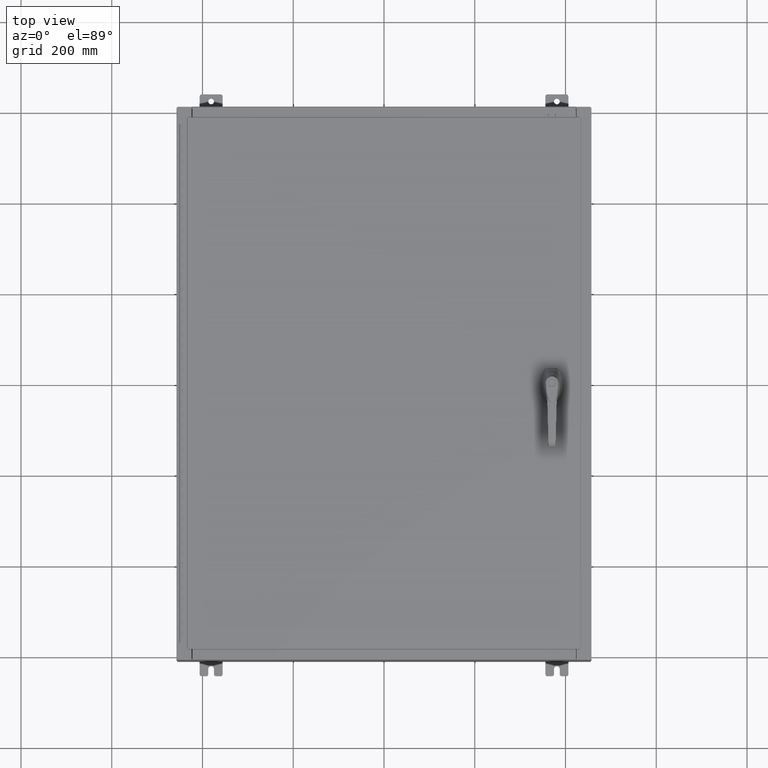
[diagram: clean part render]
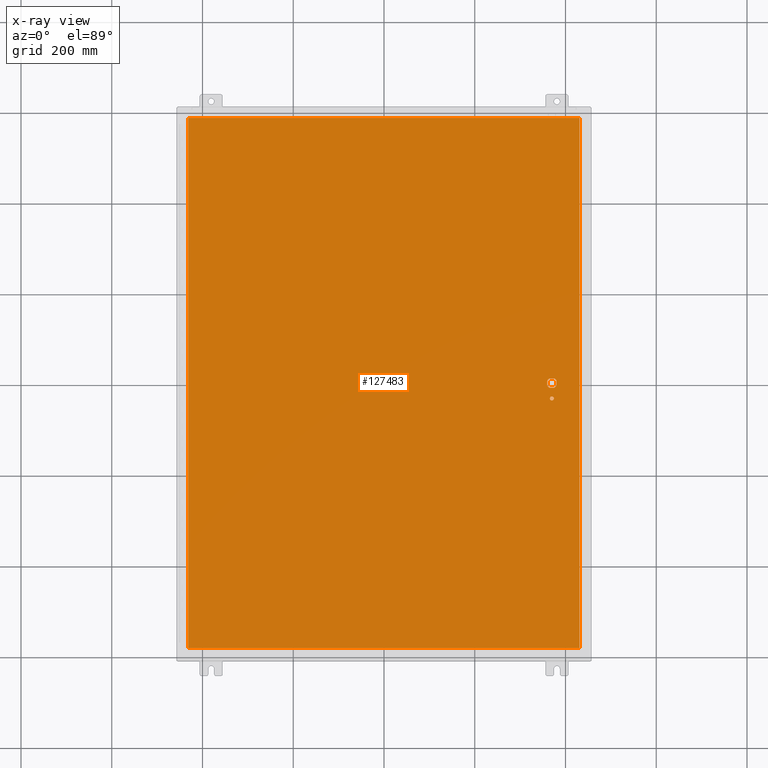
[diagram: x-ray — body ghosted, one internal face saturated and labeled with its STEP entity id]
A machine part, top view, then the same camera in x-ray: the body is ghosted and one INTERNAL B-rep face — a face not visible from any outside direction — is saturated and labeled: STEP entity #127483.
In plain terms, the highlighted planar face has unit normal (0, 0, -1).
Its self-contained STEP definition (entity closure, byte-faithful):
#337 = AXIS2_PLACEMENT_3D ( 'NONE', #79572, #17434, #89967 ) ;
#2579 = ORIENTED_EDGE ( 'NONE', *, *, #22970, .F. ) ;
#2669 = VERTEX_POINT ( 'NONE', #17419 ) ;
#2894 = CARTESIAN_POINT ( 'NONE',  ( 14.17500000000007400, 0.0000000000000000000, -0.07470000000000003000 ) ) ;
#4186 = CARTESIAN_POINT ( 'NONE',  ( 14.37777262924369000, -0.4029999999999250300, -0.07470000000000003000 ) ) ;
#7045 = VERTEX_POINT ( 'NONE', #4186 ) ;
#7061 = EDGE_CURVE ( 'NONE', #101844, #7045, #110203, .T. ) ;
#7495 = DIRECTION ( 'NONE',  ( -1.000000000000000000, 0.0000000000000000000, 0.0000000000000000000 ) ) ;
#7677 = CARTESIAN_POINT ( 'NONE',  ( 16.99029999999999800, -23.00630000000000000, -0.07470000000000000300 ) ) ;
#8233 = LINE ( 'NONE', #52496, #115249 ) ;
#8576 = LINE ( 'NONE', #123179, #63725 ) ;
#13127 = EDGE_CURVE ( 'NONE', #131182, #61639, #72195, .T. ) ;
#13226 = AXIS2_PLACEMENT_3D ( 'NONE', #27553, #100099, #37963 ) ;
#17125 = CARTESIAN_POINT ( 'NONE',  ( 14.40649999999999800, -1.338000000000000100, -0.07470000000000003000 ) ) ;
#17177 = PLANE ( 'NONE',  #13226 ) ;
#17419 = CARTESIAN_POINT ( 'NONE',  ( -16.99029999999999800, -23.00630000000000000, -0.07470000000000000300 ) ) ;
#17423 = ORIENTED_EDGE ( 'NONE', *, *, #13127, .T. ) ;
#17434 = DIRECTION ( 'NONE',  ( -0.0000000000000000000, -0.0000000000000000000, 1.000000000000000000 ) ) ;
#19519 = VECTOR ( 'NONE', #94565, 39.37007874015748100 ) ;
#20341 = CARTESIAN_POINT ( 'NONE',  ( 14.98099999999992700, -0.2002273707563067300, -0.07470000000000003000 ) ) ;
#20376 = ORIENTED_EDGE ( 'NONE', *, *, #127525, .T. ) ;
#22228 = VERTEX_POINT ( 'NONE', #17125 ) ;
#22824 = EDGE_LOOP ( 'NONE', ( #81916, #116933, #17423, #25218, #20376, #105251, #30755, #69776 ) ) ;
#22970 = EDGE_CURVE ( 'NONE', #131250, #66582, #43786, .T. ) ;
#23426 = CARTESIAN_POINT ( 'NONE',  ( 14.74950000000000100, -1.338000000000000100, -0.07470000000000003000 ) ) ;
#24737 = EDGE_CURVE ( 'NONE', #103988, #101844, #30795, .T. ) ;
#24909 = CARTESIAN_POINT ( 'NONE',  ( 16.99029999999999800, 23.00630000000001000, -0.07469999999999804600 ) ) ;
#25133 = DIRECTION ( 'NONE',  ( 1.000000000000000000, 0.0000000000000000000, 0.0000000000000000000 ) ) ;
#25218 = ORIENTED_EDGE ( 'NONE', *, *, #68341, .T. ) ;
#25553 = EDGE_CURVE ( 'NONE', #66582, #54184, #51781, .T. ) ;
#27507 = VECTOR ( 'NONE', #75457, 39.37007874015748100 ) ;
#27553 = CARTESIAN_POINT ( 'NONE',  ( 0.0000000000000000000, 0.0000000000000000000, -0.07470000000000000300 ) ) ;
#27579 = CARTESIAN_POINT ( 'NONE',  ( 14.98099999999992700, 0.2002273707563075900, -0.07470000000000003000 ) ) ;
#28062 = LINE ( 'NONE', #53868, #68663 ) ;
#29007 = EDGE_CURVE ( 'NONE', #54184, #2669, #8576, .T. ) ;
#30253 = DIRECTION ( 'NONE',  ( 0.0000000000000000000, -1.000000000000000000, 0.0000000000000000000 ) ) ;
#30755 = ORIENTED_EDGE ( 'NONE', *, *, #7061, .T. ) ;
#30795 = LINE ( 'NONE', #2894, #27507 ) ;
#32466 = DIRECTION ( 'NONE',  ( -1.000000000000000000, -1.776356839400246700E-015, 0.0000000000000000000 ) ) ;
#33276 = VERTEX_POINT ( 'NONE', #96318 ) ;
#33975 = AXIS2_PLACEMENT_3D ( 'NONE', #111891, #49802, #122277 ) ;
#35251 = DIRECTION ( 'NONE',  ( -1.000000000000000000, -0.0000000000000000000, -0.0000000000000000000 ) ) ;
#37021 = LINE ( 'NONE', #87266, #40318 ) ;
#37963 = DIRECTION ( 'NONE',  ( -1.000000000000000000, 0.0000000000000000000, -0.0000000000000000000 ) ) ;
#38067 = ORIENTED_EDGE ( 'NONE', *, *, #25553, .F. ) ;
#38900 = CARTESIAN_POINT ( 'NONE',  ( 14.77822737075630900, -0.4029999999999252000, -0.07470000000000003000 ) ) ;
#39549 = EDGE_CURVE ( 'NONE', #116625, #22228, #70675, .T. ) ;
#40318 = VECTOR ( 'NONE', #25133, 39.37007874015748100 ) ;
#42857 = CARTESIAN_POINT ( 'NONE',  ( 16.99029999999999800, -23.00630000000000300, -0.07470000000000019700 ) ) ;
#42961 = CARTESIAN_POINT ( 'NONE',  ( 16.99029999999999800, 23.00630000000000300, -0.07470000000000000300 ) ) ;
#43786 = LINE ( 'NONE', #42857, #19519 ) ;
#43936 = CARTESIAN_POINT ( 'NONE',  ( 14.57799999999999900, -1.338000000000000100, -0.07470000000000003000 ) ) ;
#46628 = AXIS2_PLACEMENT_3D ( 'NONE', #48439, #120902, #58853 ) ;
#48439 = CARTESIAN_POINT ( 'NONE',  ( 14.57799999999999900, 0.0000000000000000000, -0.07470000000000003000 ) ) ;
#49802 = DIRECTION ( 'NONE',  ( -0.0000000000000000000, -0.0000000000000000000, 1.000000000000000000 ) ) ;
#51727 = LINE ( 'NONE', #65822, #131116 ) ;
#51781 = LINE ( 'NONE', #24909, #100365 ) ;
#52496 = CARTESIAN_POINT ( 'NONE',  ( 14.98099999999992700, 8.175868191945441800E-014, -0.07470000000000003000 ) ) ;
#53194 = VERTEX_POINT ( 'NONE', #38900 ) ;
#53868 = CARTESIAN_POINT ( 'NONE',  ( 0.0000000000000000000, 0.4029999999999252000, -0.07470000000000003000 ) ) ;
#54184 = VERTEX_POINT ( 'NONE', #66860 ) ;
#54370 = DIRECTION ( 'NONE',  ( -1.000000000000000000, 0.0000000000000000000, 0.0000000000000000000 ) ) ;
#55387 = DIRECTION ( 'NONE',  ( 1.000000000000000000, -0.0000000000000000000, -0.0000000000000000000 ) ) ;
#56263 = VERTEX_POINT ( 'NONE', #20341 ) ;
#57260 = EDGE_CURVE ( 'NONE', #2669, #131250, #51727, .T. ) ;
#57859 = ORIENTED_EDGE ( 'NONE', *, *, #29007, .F. ) ;
#58853 = DIRECTION ( 'NONE',  ( -1.000000000000000000, -5.329070518200740300E-015, 0.0000000000000000000 ) ) ;
#59039 = AXIS2_PLACEMENT_3D ( 'NONE', #131659, #69599, #7495 ) ;
#61639 = VERTEX_POINT ( 'NONE', #98621 ) ;
#63725 = VECTOR ( 'NONE', #30253, 39.37007874015748100 ) ;
#65822 = CARTESIAN_POINT ( 'NONE',  ( -16.99029999999999800, -23.00630000000000300, -0.07469999999999804600 ) ) ;
#66582 = VERTEX_POINT ( 'NONE', #42961 ) ;
#66860 = CARTESIAN_POINT ( 'NONE',  ( -16.99029999999999400, 23.00630000000000300, -0.07470000000000000300 ) ) ;
#68341 = EDGE_CURVE ( 'NONE', #61639, #33276, #28062, .T. ) ;
#68663 = VECTOR ( 'NONE', #115937, 39.37007874015748100 ) ;
#69599 = DIRECTION ( 'NONE',  ( -0.0000000000000000000, -0.0000000000000000000, 1.000000000000000000 ) ) ;
#69776 = ORIENTED_EDGE ( 'NONE', *, *, #88560, .T. ) ;
#70675 = CIRCLE ( 'NONE', #59039, 0.1715000000000011500 ) ;
#70935 = EDGE_CURVE ( 'NONE', #131182, #56263, #8233, .T. ) ;
#71576 = ORIENTED_EDGE ( 'NONE', *, *, #83396, .T. ) ;
#72195 = CIRCLE ( 'NONE', #46628, 0.4499999999999168000 ) ;
#74230 = CIRCLE ( 'NONE', #337, 0.4499999999999168000 ) ;
#75457 = DIRECTION ( 'NONE',  ( 0.0000000000000000000, -1.000000000000000000, 0.0000000000000000000 ) ) ;
#79572 = CARTESIAN_POINT ( 'NONE',  ( 14.57799999999999900, 0.0000000000000000000, -0.07470000000000003000 ) ) ;
#79602 = CARTESIAN_POINT ( 'NONE',  ( 14.57799999999999900, 0.0000000000000000000, -0.07470000000000003000 ) ) ;
#81916 = ORIENTED_EDGE ( 'NONE', *, *, #115498, .T. ) ;
#82286 = CARTESIAN_POINT ( 'NONE',  ( 14.17500000000007400, 0.2002273707563075900, -0.07470000000000003000 ) ) ;
#82712 = ORIENTED_EDGE ( 'NONE', *, *, #39549, .T. ) ;
#83396 = EDGE_CURVE ( 'NONE', #22228, #116625, #94894, .T. ) ;
#87266 = CARTESIAN_POINT ( 'NONE',  ( 0.0000000000000000000, -0.4029999999999252000, -0.07470000000000003000 ) ) ;
#88560 = EDGE_CURVE ( 'NONE', #7045, #53194, #37021, .T. ) ;
#89967 = DIRECTION ( 'NONE',  ( -1.000000000000000000, -1.776356839400246700E-015, 0.0000000000000000000 ) ) ;
#93218 = ORIENTED_EDGE ( 'NONE', *, *, #57260, .F. ) ;
#94565 = DIRECTION ( 'NONE',  ( 0.0000000000000000000, 1.000000000000000000, 0.0000000000000000000 ) ) ;
#94894 = CIRCLE ( 'NONE', #120018, 0.1715000000000011500 ) ;
#96318 = CARTESIAN_POINT ( 'NONE',  ( 14.37777262924369000, 0.4029999999999252000, -0.07470000000000003000 ) ) ;
#98621 = CARTESIAN_POINT ( 'NONE',  ( 14.77822737075630900, 0.4029999999999250300, -0.07470000000000003000 ) ) ;
#99383 = FACE_BOUND ( 'NONE', #106566, .T. ) ;
#100099 = DIRECTION ( 'NONE',  ( 0.0000000000000000000, 0.0000000000000000000, -1.000000000000000000 ) ) ;
#100365 = VECTOR ( 'NONE', #35251, 39.37007874015748100 ) ;
#101844 = VERTEX_POINT ( 'NONE', #102559 ) ;
#102559 = CARTESIAN_POINT ( 'NONE',  ( 14.17500000000007400, -0.2002273707563079800, -0.07470000000000003000 ) ) ;
#103988 = VERTEX_POINT ( 'NONE', #82286 ) ;
#105251 = ORIENTED_EDGE ( 'NONE', *, *, #24737, .T. ) ;
#105879 = FACE_BOUND ( 'NONE', #22824, .T. ) ;
#106566 = EDGE_LOOP ( 'NONE', ( #82712, #71576 ) ) ;
#109038 = EDGE_LOOP ( 'NONE', ( #2579, #93218, #57859, #38067 ) ) ;
#110203 = CIRCLE ( 'NONE', #115745, 0.4499999999999168000 ) ;
#111891 = CARTESIAN_POINT ( 'NONE',  ( 14.57799999999999900, 0.0000000000000000000, -0.07470000000000003000 ) ) ;
#113355 = DIRECTION ( 'NONE',  ( -0.0000000000000000000, -0.0000000000000000000, 1.000000000000000000 ) ) ;
#114569 = DIRECTION ( 'NONE',  ( 5.457491617345625800E-015, -1.000000000000000000, 0.0000000000000000000 ) ) ;
#115249 = VECTOR ( 'NONE', #114569, 39.37007874015748100 ) ;
#115498 = EDGE_CURVE ( 'NONE', #53194, #56263, #74230, .T. ) ;
#115745 = AXIS2_PLACEMENT_3D ( 'NONE', #79602, #113355, #32466 ) ;
#115937 = DIRECTION ( 'NONE',  ( -1.000000000000000000, 0.0000000000000000000, 0.0000000000000000000 ) ) ;
#116435 = DIRECTION ( 'NONE',  ( -0.0000000000000000000, -0.0000000000000000000, 1.000000000000000000 ) ) ;
#116625 = VERTEX_POINT ( 'NONE', #23426 ) ;
#116933 = ORIENTED_EDGE ( 'NONE', *, *, #70935, .F. ) ;
#120018 = AXIS2_PLACEMENT_3D ( 'NONE', #43936, #116435, #54370 ) ;
#120902 = DIRECTION ( 'NONE',  ( -0.0000000000000000000, -0.0000000000000000000, 1.000000000000000000 ) ) ;
#122277 = DIRECTION ( 'NONE',  ( -1.000000000000000000, -5.329070518200740300E-015, 0.0000000000000000000 ) ) ;
#123179 = CARTESIAN_POINT ( 'NONE',  ( -16.99029999999999400, 23.00630000000001000, -0.07470000000000129300 ) ) ;
#123699 = CIRCLE ( 'NONE', #33975, 0.4499999999999168000 ) ;
#126912 = FACE_OUTER_BOUND ( 'NONE', #109038, .T. ) ;
#127483 = ADVANCED_FACE ( 'NONE', ( #99383, #126912, #105879 ), #17177, .T. ) ;
#127525 = EDGE_CURVE ( 'NONE', #33276, #103988, #123699, .T. ) ;
#131116 = VECTOR ( 'NONE', #55387, 39.37007874015748100 ) ;
#131182 = VERTEX_POINT ( 'NONE', #27579 ) ;
#131250 = VERTEX_POINT ( 'NONE', #7677 ) ;
#131659 = CARTESIAN_POINT ( 'NONE',  ( 14.57799999999999900, -1.338000000000000100, -0.07470000000000003000 ) ) ;